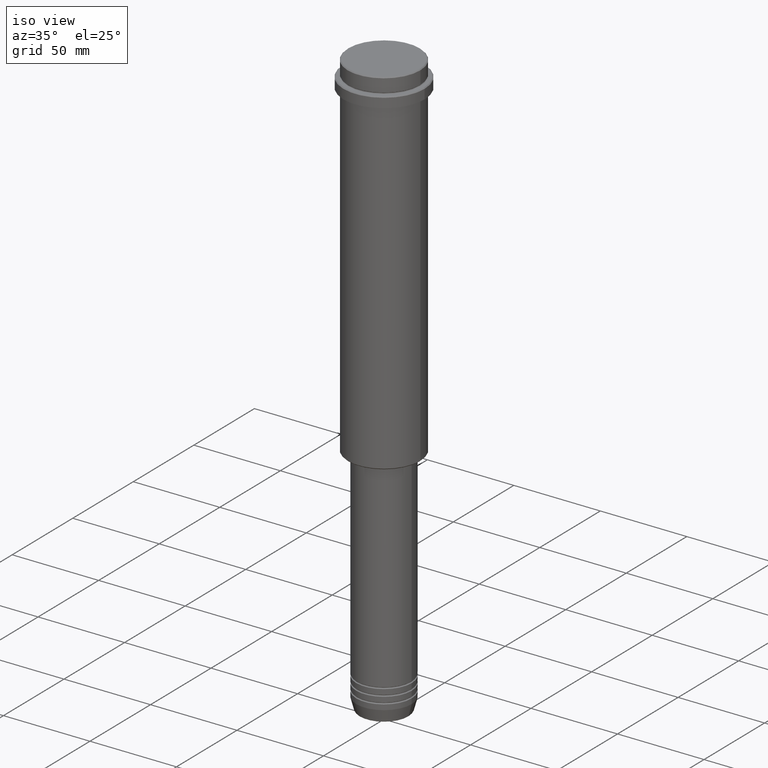
[diagram: clean part render]
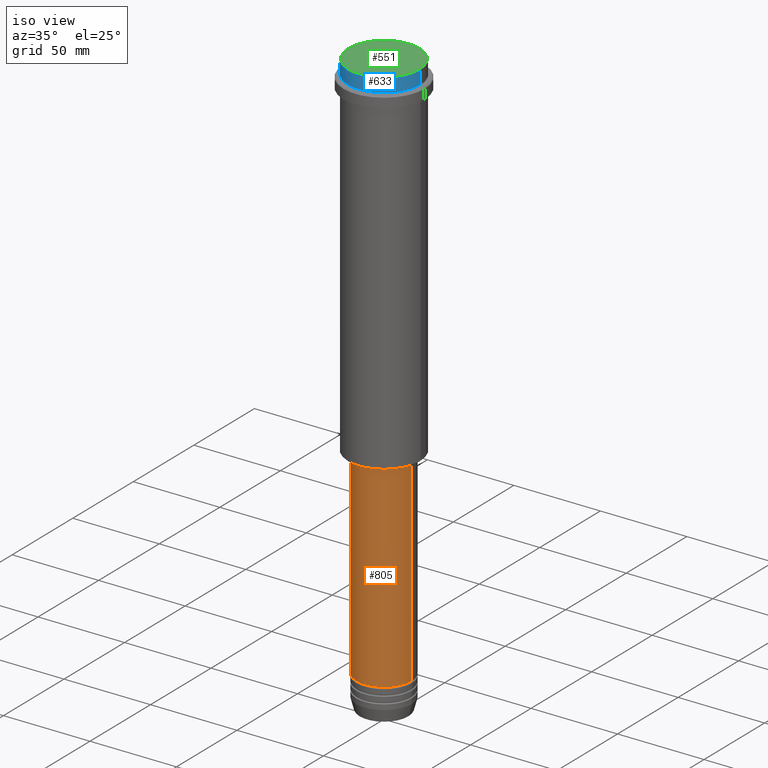
[diagram: same view with three faces highlighted in distinct colors, each labeled with its STEP entity id]
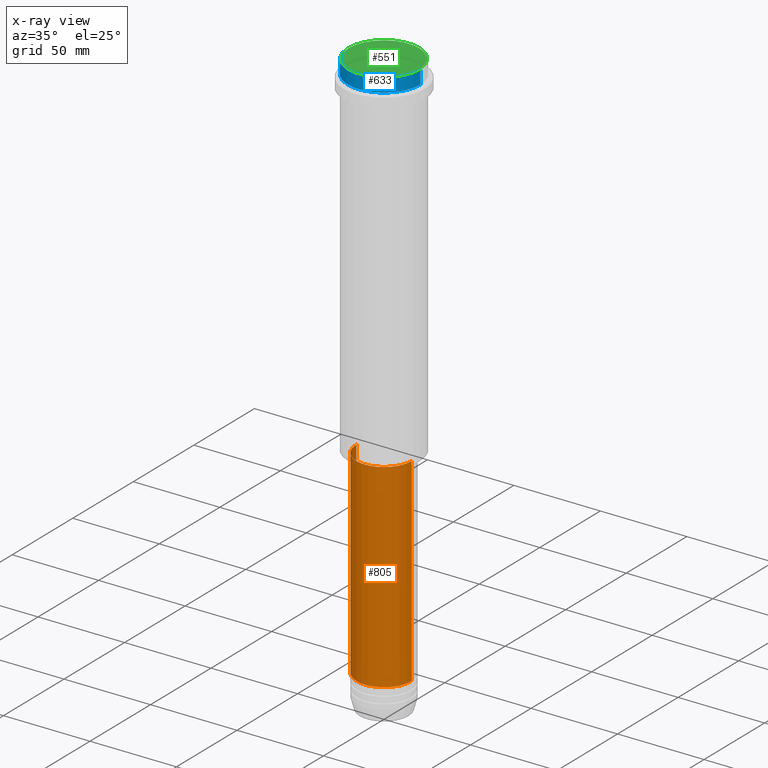
[diagram: x-ray of the same camera — body ghosted, the three highlighted faces saturated]
A machine part, iso view with three faces highlighted in distinct colors.
The next image is the same camera in x-ray (body ghosted, the three faces saturated) — at least one of them is partly hidden behind the body in this view.
Their STEP definitions:

[orange] entity #805 — the highlighted cylindrical surface (edge-blend (fillet) strip) has radius 16 mm, axis along (-0, -0, 1).
#3 = CYLINDRICAL_SURFACE ( 'NONE', #708, 16.00000000000000000 ) ;
#38 = ORIENTED_EDGE ( 'NONE', *, *, #1306, .T. ) ;
#67 = LINE ( 'NONE', #500, #527 ) ;
#74 = DIRECTION ( 'NONE',  ( -0.000000000000000000, -0.000000000000000000, 1.000000000000000000 ) ) ;
#97 = LINE ( 'NONE', #650, #415 ) ;
#211 = AXIS2_PLACEMENT_3D ( 'NONE', #927, #1370, #1112 ) ;
#222 = EDGE_CURVE ( 'NONE', #774, #920, #67, .T. ) ;
#226 = CARTESIAN_POINT ( 'NONE',  ( 0.000000000000000000, 0.000000000000000000, 0.000000000000000000 ) ) ;
#326 = CARTESIAN_POINT ( 'NONE',  ( -16.00000000000000355, 1.959434878635765526E-15, -205.9999999999999432 ) ) ;
#381 = CIRCLE ( 'NONE', #211, 16.00000000000000355 ) ;
#415 = VECTOR ( 'NONE', #430, 1000.000000000000000 ) ;
#418 = CARTESIAN_POINT ( 'NONE',  ( 16.00000000000000000, 0.000000000000000000, -320.9999999999998863 ) ) ;
#430 = DIRECTION ( 'NONE',  ( -0.000000000000000000, -0.000000000000000000, 1.000000000000000000 ) ) ;
#500 = CARTESIAN_POINT ( 'NONE',  ( -16.00000000000000000, 1.959434878635765131E-15, 0.000000000000000000 ) ) ;
#527 = VECTOR ( 'NONE', #1041, 1000.000000000000000 ) ;
#650 = CARTESIAN_POINT ( 'NONE',  ( 16.00000000000000000, 0.000000000000000000, 0.000000000000000000 ) ) ;
#653 = CARTESIAN_POINT ( 'NONE',  ( -16.00000000000000000, 1.959434878635765131E-15, -320.9999999999998863 ) ) ;
#678 = VERTEX_POINT ( 'NONE', #1197 ) ;
#689 = CIRCLE ( 'NONE', #770, 16.00000000000000000 ) ;
#708 = AXIS2_PLACEMENT_3D ( 'NONE', #226, #870, #1203 ) ;
#743 = DIRECTION ( 'NONE',  ( 1.000000000000000000, 0.000000000000000000, 0.000000000000000000 ) ) ;
#770 = AXIS2_PLACEMENT_3D ( 'NONE', #1037, #74, #743 ) ;
#774 = VERTEX_POINT ( 'NONE', #653 ) ;
#781 = EDGE_CURVE ( 'NONE', #774, #1404, #689, .T. ) ;
#805 = ADVANCED_FACE ( 'NONE', ( #974 ), #3, .T. ) ;
#815 = EDGE_LOOP ( 'NONE', ( #1220, #946, #38, #820 ) ) ;
#820 = ORIENTED_EDGE ( 'NONE', *, *, #1092, .F. ) ;
#870 = DIRECTION ( 'NONE',  ( -0.000000000000000000, -0.000000000000000000, 1.000000000000000000 ) ) ;
#920 = VERTEX_POINT ( 'NONE', #326 ) ;
#927 = CARTESIAN_POINT ( 'NONE',  ( 0.000000000000000000, 0.000000000000000000, -205.9999999999999432 ) ) ;
#946 = ORIENTED_EDGE ( 'NONE', *, *, #781, .T. ) ;
#974 = FACE_OUTER_BOUND ( 'NONE', #815, .T. ) ;
#1037 = CARTESIAN_POINT ( 'NONE',  ( 0.000000000000000000, 0.000000000000000000, -320.9999999999998863 ) ) ;
#1041 = DIRECTION ( 'NONE',  ( -0.000000000000000000, -0.000000000000000000, 1.000000000000000000 ) ) ;
#1092 = EDGE_CURVE ( 'NONE', #920, #678, #381, .T. ) ;
#1112 = DIRECTION ( 'NONE',  ( 1.000000000000000000, 0.000000000000000000, 0.000000000000000000 ) ) ;
#1197 = CARTESIAN_POINT ( 'NONE',  ( 16.00000000000000355, 0.000000000000000000, -205.9999999999999432 ) ) ;
#1203 = DIRECTION ( 'NONE',  ( 1.000000000000000000, 0.000000000000000000, 0.000000000000000000 ) ) ;
#1220 = ORIENTED_EDGE ( 'NONE', *, *, #222, .F. ) ;
#1306 = EDGE_CURVE ( 'NONE', #1404, #678, #97, .T. ) ;
#1370 = DIRECTION ( 'NONE',  ( -0.000000000000000000, -0.000000000000000000, 1.000000000000000000 ) ) ;
#1404 = VERTEX_POINT ( 'NONE', #418 ) ;

[blue] entity #633 — the highlighted cylindrical surface (partial cylindrical patch) has radius 21 mm, axis along (-0, -0, 1).
#10 = DIRECTION ( 'NONE',  ( 1.000000000000000000, 0.000000000000000000, 0.000000000000000000 ) ) ;
#43 = VERTEX_POINT ( 'NONE', #92 ) ;
#76 = DIRECTION ( 'NONE',  ( -0.000000000000000000, -0.000000000000000000, 1.000000000000000000 ) ) ;
#92 = CARTESIAN_POINT ( 'NONE',  ( 20.99999999999999645, 0.000000000000000000, -0.5000000000000628386 ) ) ;
#183 = CARTESIAN_POINT ( 'NONE',  ( 20.99999999999999645, 0.000000000000000000, -7.999999999999998224 ) ) ;
#204 = CARTESIAN_POINT ( 'NONE',  ( -20.99999999999999645, 2.571758278209441267E-15, -7.999999999999998224 ) ) ;
#262 = VECTOR ( 'NONE', #494, 1000.000000000000000 ) ;
#288 = CYLINDRICAL_SURFACE ( 'NONE', #439, 20.99999999999999645 ) ;
#317 = VERTEX_POINT ( 'NONE', #204 ) ;
#330 = AXIS2_PLACEMENT_3D ( 'NONE', #530, #422, #10 ) ;
#352 = AXIS2_PLACEMENT_3D ( 'NONE', #594, #414, #1181 ) ;
#364 = ORIENTED_EDGE ( 'NONE', *, *, #454, .T. ) ;
#407 = DIRECTION ( 'NONE',  ( -0.000000000000000000, -0.000000000000000000, 1.000000000000000000 ) ) ;
#414 = DIRECTION ( 'NONE',  ( -0.000000000000000000, -0.000000000000000000, 1.000000000000000000 ) ) ;
#422 = DIRECTION ( 'NONE',  ( 0.000000000000000000, 0.000000000000000000, -1.000000000000000000 ) ) ;
#439 = AXIS2_PLACEMENT_3D ( 'NONE', #1145, #76, #1376 ) ;
#454 = EDGE_CURVE ( 'NONE', #648, #43, #588, .T. ) ;
#473 = ORIENTED_EDGE ( 'NONE', *, *, #1350, .F. ) ;
#494 = DIRECTION ( 'NONE',  ( -0.000000000000000000, -0.000000000000000000, 1.000000000000000000 ) ) ;
#530 = CARTESIAN_POINT ( 'NONE',  ( 0.000000000000000000, 0.000000000000000000, -0.5000000000000628386 ) ) ;
#546 = LINE ( 'NONE', #635, #1266 ) ;
#588 = LINE ( 'NONE', #1264, #262 ) ;
#594 = CARTESIAN_POINT ( 'NONE',  ( 0.000000000000000000, 0.000000000000000000, -7.999999999999998224 ) ) ;
#609 = ORIENTED_EDGE ( 'NONE', *, *, #1062, .T. ) ;
#633 = ADVANCED_FACE ( 'NONE', ( #1034 ), #288, .T. ) ;
#635 = CARTESIAN_POINT ( 'NONE',  ( -20.99999999999999645, 2.571758278209441267E-15, 0.000000000000000000 ) ) ;
#648 = VERTEX_POINT ( 'NONE', #183 ) ;
#808 = ORIENTED_EDGE ( 'NONE', *, *, #1141, .T. ) ;
#825 = VERTEX_POINT ( 'NONE', #1329 ) ;
#1013 = EDGE_LOOP ( 'NONE', ( #473, #808, #364, #609 ) ) ;
#1034 = FACE_OUTER_BOUND ( 'NONE', #1013, .T. ) ;
#1062 = EDGE_CURVE ( 'NONE', #43, #825, #1090, .T. ) ;
#1090 = CIRCLE ( 'NONE', #330, 20.99999999999999645 ) ;
#1141 = EDGE_CURVE ( 'NONE', #317, #648, #1184, .T. ) ;
#1145 = CARTESIAN_POINT ( 'NONE',  ( 0.000000000000000000, 0.000000000000000000, 0.000000000000000000 ) ) ;
#1181 = DIRECTION ( 'NONE',  ( 1.000000000000000000, 0.000000000000000000, 0.000000000000000000 ) ) ;
#1184 = CIRCLE ( 'NONE', #352, 20.99999999999999645 ) ;
#1264 = CARTESIAN_POINT ( 'NONE',  ( 20.99999999999999645, 0.000000000000000000, 0.000000000000000000 ) ) ;
#1266 = VECTOR ( 'NONE', #407, 1000.000000000000000 ) ;
#1329 = CARTESIAN_POINT ( 'NONE',  ( -20.99999999999999645, 2.571758278209441267E-15, -0.5000000000000628386 ) ) ;
#1350 = EDGE_CURVE ( 'NONE', #317, #825, #546, .T. ) ;
#1376 = DIRECTION ( 'NONE',  ( 1.000000000000000000, 0.000000000000000000, 0.000000000000000000 ) ) ;

[green] entity #551 — the highlighted planar face has unit normal (0, -0, 1).
#68 = DIRECTION ( 'NONE',  ( 0.000000000000000000, -0.000000000000000000, 1.000000000000000000 ) ) ;
#72 = ORIENTED_EDGE ( 'NONE', *, *, #777, .T. ) ;
#166 = DIRECTION ( 'NONE',  ( 1.000000000000000000, 0.000000000000000000, 0.000000000000000000 ) ) ;
#261 = VERTEX_POINT ( 'NONE', #1383 ) ;
#271 = PLANE ( 'NONE',  #456 ) ;
#295 = CARTESIAN_POINT ( 'NONE',  ( 0.000000000000000000, 0.000000000000000000, 0.000000000000000000 ) ) ;
#343 = CARTESIAN_POINT ( 'NONE',  ( 0.000000000000000000, 0.000000000000000000, 0.000000000000000000 ) ) ;
#349 = DIRECTION ( 'NONE',  ( -0.000000000000000000, -0.000000000000000000, 1.000000000000000000 ) ) ;
#377 = EDGE_LOOP ( 'NONE', ( #923, #72 ) ) ;
#408 = EDGE_CURVE ( 'NONE', #261, #1039, #638, .T. ) ;
#456 = AXIS2_PLACEMENT_3D ( 'NONE', #699, #68, #166 ) ;
#551 = ADVANCED_FACE ( 'NONE', ( #1244 ), #271, .T. ) ;
#597 = CIRCLE ( 'NONE', #1396, 20.49999999999996447 ) ;
#638 = CIRCLE ( 'NONE', #933, 20.49999999999996447 ) ;
#699 = CARTESIAN_POINT ( 'NONE',  ( 0.000000000000000000, 0.000000000000000000, 0.000000000000000000 ) ) ;
#763 = DIRECTION ( 'NONE',  ( 1.000000000000000000, 0.000000000000000000, 0.000000000000000000 ) ) ;
#777 = EDGE_CURVE ( 'NONE', #1039, #261, #597, .T. ) ;
#923 = ORIENTED_EDGE ( 'NONE', *, *, #408, .T. ) ;
#933 = AXIS2_PLACEMENT_3D ( 'NONE', #343, #349, #763 ) ;
#940 = DIRECTION ( 'NONE',  ( -0.000000000000000000, -0.000000000000000000, 1.000000000000000000 ) ) ;
#1039 = VERTEX_POINT ( 'NONE', #1060 ) ;
#1056 = DIRECTION ( 'NONE',  ( 1.000000000000000000, 0.000000000000000000, 0.000000000000000000 ) ) ;
#1060 = CARTESIAN_POINT ( 'NONE',  ( 20.49999999999996447, 2.541142108230755507E-15, 0.000000000000000000 ) ) ;
#1244 = FACE_OUTER_BOUND ( 'NONE', #377, .T. ) ;
#1383 = CARTESIAN_POINT ( 'NONE',  ( -20.49999999999996447, 0.000000000000000000, 0.000000000000000000 ) ) ;
#1396 = AXIS2_PLACEMENT_3D ( 'NONE', #295, #940, #1056 ) ;